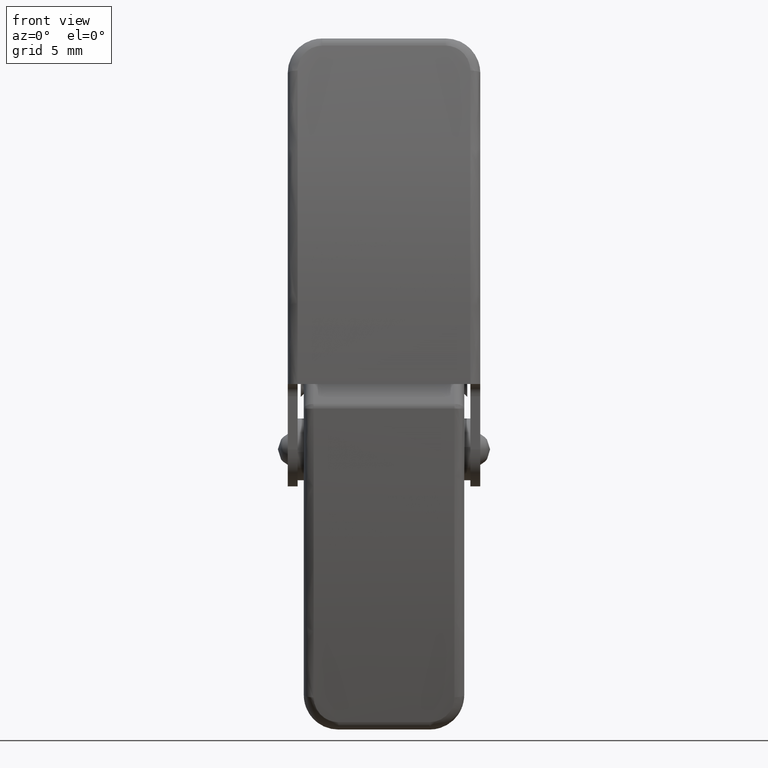
[diagram: clean part render]
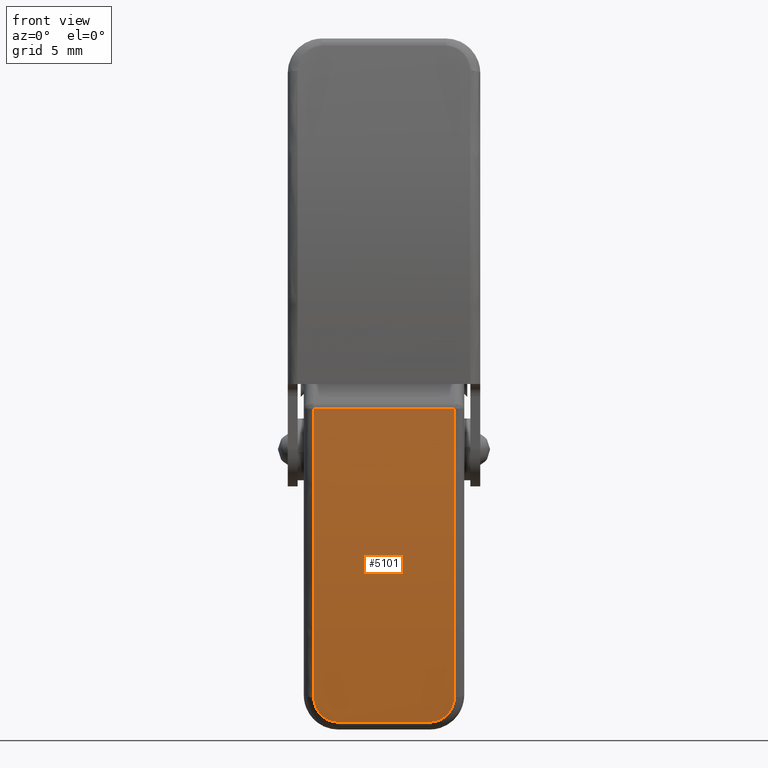
[diagram: same view with one face highlighted and labeled with its STEP entity id]
A machine part, front view. The second image highlights one B-rep face of the part: STEP entity #5101.
In plain terms, the highlighted face is a freeform B-spline surface patch.
Its self-contained STEP definition (entity closure, byte-faithful):
#2700=CARTESIAN_POINT('',(5.700000000001150,-8.999999999998671,7.299999999999480));
#2701=VERTEX_POINT('',#2700);
#2748=CARTESIAN_POINT('',(-5.699999999994600,-8.999999999998671,7.299999999999480));
#2749=VERTEX_POINT('',#2748);
#2763=CARTESIAN_POINT('',(5.700000000001150,-8.999999999998671,7.299999999999480));
#2764=CARTESIAN_POINT('',(-5.699999999994600,-8.999999999998671,7.299999999999480));
#2765=QUASI_UNIFORM_CURVE('',1,(#2763,#2764),.UNSPECIFIED.,.F.,.U.);
#2766=EDGE_CURVE('',#2701,#2749,#2765,.T.);
#2794=CARTESIAN_POINT('',(5.700000000001190,-6.249751211514520,-16.085599999996852));
#2795=VERTEX_POINT('',#2794);
#2825=CARTESIAN_POINT('',(5.700000000001190,-6.249751211514520,-16.085599999996852));
#2826=CARTESIAN_POINT('',(5.700000000001150,-8.999999999998593,-4.554520640019723));
#2827=CARTESIAN_POINT('',(5.700000000001150,-8.999999999998671,7.299999999999480));
#2835=(BOUNDED_CURVE()B_SPLINE_CURVE(2,(#2825,#2826,#2827),.UNSPECIFIED.,.F.,.U.)CURVE()GEOMETRIC_REPRESENTATION_ITEM()QUASI_UNIFORM_CURVE()RATIONAL_B_SPLINE_CURVE((1.0,0.993155523024599,1.0))REPRESENTATION_ITEM(''));
#2836=EDGE_CURVE('',#2795,#2701,#2835,.T.);
#3007=CARTESIAN_POINT('',(3.700000000001195,-5.746905217130870,-18.101599999996800));
#3008=VERTEX_POINT('',#3007);
#3058=CARTESIAN_POINT('',(3.700000000001195,-5.746905217130870,-18.101599999996800));
#3059=CARTESIAN_POINT('',(3.767364775164386,-5.746905217130872,-18.101599999996800));
#3060=CARTESIAN_POINT('',(3.834376589646224,-5.747796488253468,-18.098178074449820));
#3061=CARTESIAN_POINT('',(3.967705638332098,-5.751330814408941,-18.084599771375700));
#3062=CARTESIAN_POINT('',(4.034187349937886,-5.753982952448655,-18.074408477517149));
#3063=CARTESIAN_POINT('',(4.231499896330713,-5.764535709482861,-18.033814432019181));
#3064=CARTESIAN_POINT('',(4.357882973942124,-5.774863402506760,-17.994048646018829));
#3065=CARTESIAN_POINT('',(4.540122306969464,-5.794968911907071,-17.916319305460689));
#3066=CARTESIAN_POINT('',(4.599636643157846,-5.802445482481702,-17.887372443982219));
#3067=CARTESIAN_POINT('',(4.687026668238700,-5.814831359716468,-17.839311293511749));
#3068=CARTESIAN_POINT('',(4.715925344477068,-5.819169239050544,-17.822462506931579));
#3069=CARTESIAN_POINT('',(4.772542284298551,-5.828153758837913,-17.787525166410450));
#3070=CARTESIAN_POINT('',(4.800281718869457,-5.832801679435370,-17.769431765355169));
#3071=CARTESIAN_POINT('',(4.936205639450346,-5.856794204637177,-17.675918615681709));
#3072=CARTESIAN_POINT('',(5.036150473089936,-5.878376179701982,-17.591448510377031));
#3073=CARTESIAN_POINT('',(5.173237906749836,-5.914118980922183,-17.450622159736000));
#3074=CARTESIAN_POINT('',(5.216945412456916,-5.926652378343581,-17.401097826601990));
#3075=CARTESIAN_POINT('',(5.299156666914757,-5.952619319242642,-17.298134789942889));
#3076=CARTESIAN_POINT('',(5.337374066365339,-5.965950833338153,-17.245101690937471));
#3077=CARTESIAN_POINT('',(5.443712946552606,-6.006920240748972,-17.081529699368339));
#3078=CARTESIAN_POINT('',(5.503596453495740,-6.035523479483453,-16.966558478159740));
#3079=CARTESIAN_POINT('',(5.576845133315553,-6.080278668025557,-16.785159882987859));
#3080=CARTESIAN_POINT('',(5.598492290232601,-6.095547318361685,-16.723029280197139));
#3081=CARTESIAN_POINT('',(5.635312272399088,-6.126064655188269,-16.598325918496631));
#3082=CARTESIAN_POINT('',(5.650624562365955,-6.141387669096842,-16.535453330635050));
#3083=CARTESIAN_POINT('',(5.687470574705199,-6.187533000402283,-16.345303816966560));
#3084=CARTESIAN_POINT('',(5.700000000001192,-6.218528352492012,-16.216509344177489));
#3085=CARTESIAN_POINT('',(5.700000000001190,-6.249751211514529,-16.085599999996852));
#3086=B_SPLINE_CURVE_WITH_KNOTS('',3,(#3058,#3059,#3060,#3061,#3062,#3063,#3064,#3065,#3066,#3067,#3068,#3069,#3070,#3071,#3072,#3073,#3074,#3075,#3076,#3077,#3078,#3079,#3080,#3081,#3082,#3083,#3084,#3085),.UNSPECIFIED.,.F.,.U.,(4,2,2,2,2,2,2,2,2,2,2,2,2,4),(0.0,0.062500000000000,0.125000000000000,0.249999999999999,0.312499999999999,0.343749999999999,0.374999999999999,0.500000000000000,0.562500000000000,0.624999999999999,0.750000000000001,0.812500000000001,0.875000000000002,1.0),.UNSPECIFIED.);
#3087=EDGE_CURVE('',#3008,#2795,#3086,.T.);
#3156=CARTESIAN_POINT('',(-5.699999999994600,-6.249751211514520,-16.085599999996852));
#3157=VERTEX_POINT('',#3156);
#3171=CARTESIAN_POINT('',(-5.699999999994600,-8.999999999998671,7.299999999999480));
#3172=CARTESIAN_POINT('',(-5.699999999994600,-8.999999999998593,-4.554520640019707));
#3173=CARTESIAN_POINT('',(-5.699999999994600,-6.249751211514520,-16.085599999996852));
#3181=(BOUNDED_CURVE()B_SPLINE_CURVE(2,(#3171,#3172,#3173),.UNSPECIFIED.,.F.,.U.)CURVE()GEOMETRIC_REPRESENTATION_ITEM()QUASI_UNIFORM_CURVE()RATIONAL_B_SPLINE_CURVE((1.0,0.993155523024599,1.0))REPRESENTATION_ITEM(''));
#3182=EDGE_CURVE('',#2749,#3157,#3181,.T.);
#3215=CARTESIAN_POINT('',(-3.699999999994595,-5.746905217130870,-18.101599999996800));
#3216=VERTEX_POINT('',#3215);
#3238=CARTESIAN_POINT('',(-3.699999999994595,-5.746905217130870,-18.101599999996800));
#3239=CARTESIAN_POINT('',(3.700000000001195,-5.746905217130870,-18.101599999996800));
#3240=QUASI_UNIFORM_CURVE('',1,(#3238,#3239),.UNSPECIFIED.,.F.,.U.);
#3241=EDGE_CURVE('',#3216,#3008,#3240,.T.);
#3329=CARTESIAN_POINT('',(-5.699999999994600,-6.249751211514550,-16.085599999996852));
#3330=CARTESIAN_POINT('',(-5.699999999994600,-6.218543449328465,-16.216446047060611));
#3331=CARTESIAN_POINT('',(-5.687481153408248,-6.187426725130604,-16.345750044815929));
#3332=CARTESIAN_POINT('',(-5.650192007896496,-6.140906742066303,-16.537430847101810));
#3333=CARTESIAN_POINT('',(-5.634562810394635,-6.125362160629570,-16.601204476181572));
#3334=CARTESIAN_POINT('',(-5.597496486927450,-6.094807224269188,-16.726045205690362));
#3335=CARTESIAN_POINT('',(-5.576062800950420,-6.079765467908040,-16.787244154153740));
#3336=CARTESIAN_POINT('',(-5.503200235153102,-6.035353215182187,-16.967240000447720));
#3337=CARTESIAN_POINT('',(-5.443295209259779,-6.006686892130059,-17.082471373930691));
#3338=CARTESIAN_POINT('',(-5.299591245055729,-5.951467973701627,-17.302914870033199));
#3339=CARTESIAN_POINT('',(-5.217790435537003,-5.925703439921823,-17.404983461800981));
#3340=CARTESIAN_POINT('',(-5.080963166876538,-5.890076306026058,-17.545348085536251));
#3341=CARTESIAN_POINT('',(-5.032954764424597,-5.878696528900500,-17.590041603879840));
#3342=CARTESIAN_POINT('',(-4.931974686962998,-5.856982746430823,-17.675100550172392));
#3343=CARTESIAN_POINT('',(-4.878857470724211,-5.846634649283620,-17.715519737062760));
#3344=CARTESIAN_POINT('',(-4.715376657905347,-5.817891510231083,-17.827538703218590));
#3345=CARTESIAN_POINT('',(-4.599900820853255,-5.801532864364226,-17.890944040306781));
#3346=CARTESIAN_POINT('',(-4.447300472696163,-5.784736389544849,-17.955878597417971));
#3347=CARTESIAN_POINT('',(-4.416363838051934,-5.781561273992326,-17.968142809981870));
#3348=CARTESIAN_POINT('',(-4.353637917938257,-5.775589812460370,-17.991192429105379));
#3349=CARTESIAN_POINT('',(-4.321808944243251,-5.772791671772680,-18.001984714112460));
#3350=CARTESIAN_POINT('',(-4.226136884621452,-5.765068780351997,-18.031754267545399));
#3351=CARTESIAN_POINT('',(-4.161760603384656,-5.760778121376387,-18.048269367064410));
#3352=CARTESIAN_POINT('',(-3.966884202391429,-5.750441010415959,-18.088032788873271));
#3353=CARTESIAN_POINT('',(-3.834654444534829,-5.746905217130871,-18.101599999996800));
#3354=CARTESIAN_POINT('',(-3.699999999994594,-5.746905217130870,-18.101599999996800));
#3355=B_SPLINE_CURVE_WITH_KNOTS('',3,(#3329,#3330,#3331,#3332,#3333,#3334,#3335,#3336,#3337,#3338,#3339,#3340,#3341,#3342,#3343,#3344,#3345,#3346,#3347,#3348,#3349,#3350,#3351,#3352,#3353,#3354),.UNSPECIFIED.,.F.,.U.,(4,2,2,2,2,2,2,2,2,2,2,2,4),(0.0,0.125000000000002,0.187500000000002,0.250000000000003,0.375000000000001,0.499999999999999,0.562500000000000,0.625000000000000,0.750000000000000,0.781250000000000,0.812500000000000,0.875000000000000,1.0),.UNSPECIFIED.);
#3356=EDGE_CURVE('',#3157,#3216,#3355,.T.);
#5079=CARTESIAN_POINT('',(-5.984999999994495,-5.521522965765087,-18.951879316037360));
#5080=CARTESIAN_POINT('',(5.992125000001085,-5.521522965765087,-18.951879316037360));
#5081=CARTESIAN_POINT('',(-5.984999999994495,-9.169807737509158,-5.426880746428507));
#5082=CARTESIAN_POINT('',(5.992125000001085,-9.169807737509158,-5.426880746428507));
#5083=CARTESIAN_POINT('',(-5.984999999994494,-8.991867611519012,8.580399696085085));
#5084=CARTESIAN_POINT('',(5.992125000001085,-8.991867611519012,8.580399696085085));
#5092=(BOUNDED_SURFACE()B_SPLINE_SURFACE(1,2,((#5079,#5081,#5083),(#5080,#5082,#5084)),.UNSPECIFIED.,.F.,.F.,.U.)B_SPLINE_SURFACE_WITH_KNOTS((2,2),(3,3),(0.0,11.977124999995580),(0.0,27.885364023587108),.UNSPECIFIED.)GEOMETRIC_REPRESENTATION_ITEM()RATIONAL_B_SPLINE_SURFACE(((1.0,0.989180972213586,0.997376661841620),(1.0,0.989180972213586,0.997376661841620)))REPRESENTATION_ITEM('')SURFACE());
#5093=ORIENTED_EDGE('',*,*,#3087,.T.);
#5094=ORIENTED_EDGE('',*,*,#2836,.T.);
#5095=ORIENTED_EDGE('',*,*,#2766,.T.);
#5096=ORIENTED_EDGE('',*,*,#3182,.T.);
#5097=ORIENTED_EDGE('',*,*,#3356,.T.);
#5098=ORIENTED_EDGE('',*,*,#3241,.T.);
#5099=EDGE_LOOP('',(#5093,#5094,#5095,#5096,#5097,#5098));
#5100=FACE_OUTER_BOUND('',#5099,.T.);
#5101=ADVANCED_FACE('',(#5100),#5092,.T.);